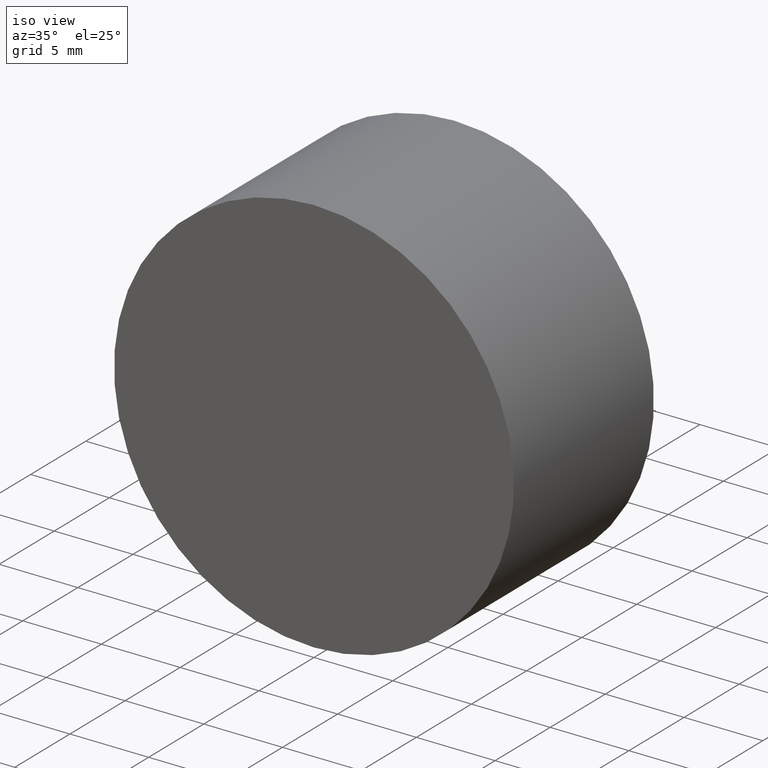
[diagram: clean part render]
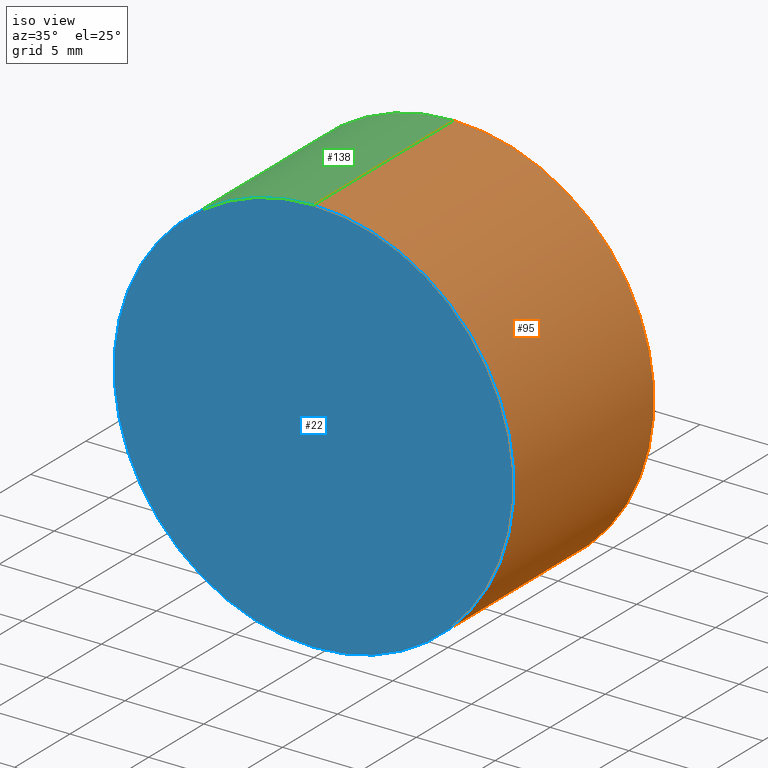
[diagram: same view with three faces highlighted in distinct colors, each labeled with its STEP entity id]
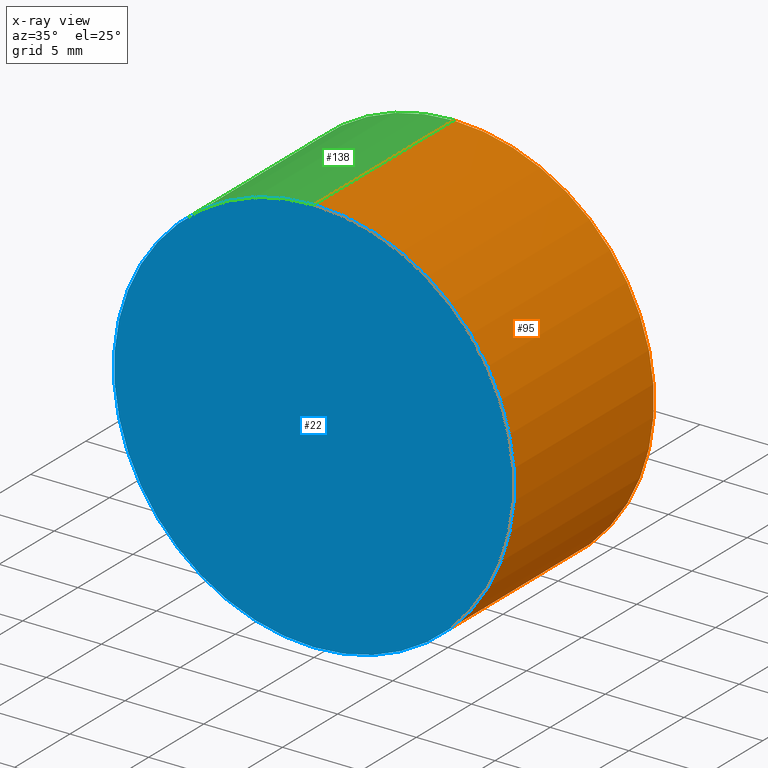
[diagram: x-ray of the same camera — body ghosted, the three highlighted faces saturated]
A machine part, iso view with three faces highlighted in distinct colors.
The next image is the same camera in x-ray (body ghosted, the three faces saturated) — at least one of them is partly hidden behind the body in this view.
Their STEP definitions:

[orange] entity #95 — the highlighted cylindrical surface (partial cylindrical patch) has radius 12.7 mm, axis along (-0, -1, -0).
#4 = EDGE_CURVE ( 'NONE', #96, #85, #9, .T. ) ;
#7 = ORIENTED_EDGE ( 'NONE', *, *, #61, .F. ) ;
#8 = CIRCLE ( 'NONE', #77, 12.69999999999999900 ) ;
#9 = LINE ( 'NONE', #46, #64 ) ;
#11 = CYLINDRICAL_SURFACE ( 'NONE', #65, 12.69999999999999900 ) ;
#12 = CARTESIAN_POINT ( 'NONE',  ( 1.555301434917138400E-015, 0.0000000000000000000, 12.69999999999999900 ) ) ;
#18 = DIRECTION ( 'NONE',  ( 0.0000000000000000000, 0.0000000000000000000, 1.000000000000000000 ) ) ;
#19 = EDGE_LOOP ( 'NONE', ( #7, #93, #99, #50 ) ) ;
#21 = VERTEX_POINT ( 'NONE', #56 ) ;
#24 = CARTESIAN_POINT ( 'NONE',  ( 0.0000000000000000000, 12.69999999999999900, 0.0000000000000000000 ) ) ;
#26 = CARTESIAN_POINT ( 'NONE',  ( 0.0000000000000000000, 0.0000000000000000000, 0.0000000000000000000 ) ) ;
#32 = DIRECTION ( 'NONE',  ( 0.0000000000000000000, 0.0000000000000000000, -1.000000000000000000 ) ) ;
#33 = CARTESIAN_POINT ( 'NONE',  ( 1.555301434917138400E-015, 12.69999999999999900, 12.69999999999999900 ) ) ;
#38 = LINE ( 'NONE', #110, #66 ) ;
#44 = DIRECTION ( 'NONE',  ( 0.0000000000000000000, 0.0000000000000000000, 1.000000000000000000 ) ) ;
#46 = CARTESIAN_POINT ( 'NONE',  ( 1.555301434917138400E-015, 12.69999999999999900, 12.69999999999999900 ) ) ;
#50 = ORIENTED_EDGE ( 'NONE', *, *, #94, .F. ) ;
#53 = CARTESIAN_POINT ( 'NONE',  ( 0.0000000000000000000, 12.69999999999999900, 0.0000000000000000000 ) ) ;
#56 = CARTESIAN_POINT ( 'NONE',  ( 0.0000000000000000000, 0.0000000000000000000, -12.69999999999999900 ) ) ;
#57 = AXIS2_PLACEMENT_3D ( 'NONE', #26, #84, #18 ) ;
#61 = EDGE_CURVE ( 'NONE', #96, #130, #8, .T. ) ;
#64 = VECTOR ( 'NONE', #75, 1000.000000000000000 ) ;
#65 = AXIS2_PLACEMENT_3D ( 'NONE', #24, #67, #32 ) ;
#66 = VECTOR ( 'NONE', #101, 1000.000000000000000 ) ;
#67 = DIRECTION ( 'NONE',  ( -0.0000000000000000000, -1.000000000000000000, -0.0000000000000000000 ) ) ;
#70 = CARTESIAN_POINT ( 'NONE',  ( 0.0000000000000000000, 12.69999999999999900, -12.69999999999999900 ) ) ;
#75 = DIRECTION ( 'NONE',  ( -0.0000000000000000000, -1.000000000000000000, -0.0000000000000000000 ) ) ;
#77 = AXIS2_PLACEMENT_3D ( 'NONE', #53, #117, #44 ) ;
#84 = DIRECTION ( 'NONE',  ( 0.0000000000000000000, 1.000000000000000000, 0.0000000000000000000 ) ) ;
#85 = VERTEX_POINT ( 'NONE', #12 ) ;
#93 = ORIENTED_EDGE ( 'NONE', *, *, #4, .T. ) ;
#94 = EDGE_CURVE ( 'NONE', #130, #21, #38, .T. ) ;
#95 = ADVANCED_FACE ( 'NONE', ( #118 ), #11, .T. ) ;
#96 = VERTEX_POINT ( 'NONE', #33 ) ;
#98 = CIRCLE ( 'NONE', #57, 12.69999999999999900 ) ;
#99 = ORIENTED_EDGE ( 'NONE', *, *, #122, .T. ) ;
#101 = DIRECTION ( 'NONE',  ( -0.0000000000000000000, -1.000000000000000000, -0.0000000000000000000 ) ) ;
#110 = CARTESIAN_POINT ( 'NONE',  ( 0.0000000000000000000, 12.69999999999999900, -12.69999999999999900 ) ) ;
#117 = DIRECTION ( 'NONE',  ( 0.0000000000000000000, 1.000000000000000000, 0.0000000000000000000 ) ) ;
#118 = FACE_OUTER_BOUND ( 'NONE', #19, .T. ) ;
#122 = EDGE_CURVE ( 'NONE', #85, #21, #98, .T. ) ;
#130 = VERTEX_POINT ( 'NONE', #70 ) ;

[blue] entity #22 — the highlighted planar face has unit normal (0, 1, 0).
#2 = DIRECTION ( 'NONE',  ( 0.0000000000000000000, 0.0000000000000000000, 1.000000000000000000 ) ) ;
#6 = CIRCLE ( 'NONE', #43, 12.69999999999999900 ) ;
#10 = AXIS2_PLACEMENT_3D ( 'NONE', #134, #54, #119 ) ;
#12 = CARTESIAN_POINT ( 'NONE',  ( 1.555301434917138400E-015, 0.0000000000000000000, 12.69999999999999900 ) ) ;
#15 = ORIENTED_EDGE ( 'NONE', *, *, #122, .F. ) ;
#18 = DIRECTION ( 'NONE',  ( 0.0000000000000000000, 0.0000000000000000000, 1.000000000000000000 ) ) ;
#21 = VERTEX_POINT ( 'NONE', #56 ) ;
#22 = ADVANCED_FACE ( 'NONE', ( #86 ), #137, .F. ) ;
#26 = CARTESIAN_POINT ( 'NONE',  ( 0.0000000000000000000, 0.0000000000000000000, 0.0000000000000000000 ) ) ;
#34 = ORIENTED_EDGE ( 'NONE', *, *, #63, .F. ) ;
#43 = AXIS2_PLACEMENT_3D ( 'NONE', #100, #112, #2 ) ;
#54 = DIRECTION ( 'NONE',  ( 0.0000000000000000000, 1.000000000000000000, 0.0000000000000000000 ) ) ;
#56 = CARTESIAN_POINT ( 'NONE',  ( 0.0000000000000000000, 0.0000000000000000000, -12.69999999999999900 ) ) ;
#57 = AXIS2_PLACEMENT_3D ( 'NONE', #26, #84, #18 ) ;
#63 = EDGE_CURVE ( 'NONE', #21, #85, #6, .T. ) ;
#71 = EDGE_LOOP ( 'NONE', ( #34, #15 ) ) ;
#84 = DIRECTION ( 'NONE',  ( 0.0000000000000000000, 1.000000000000000000, 0.0000000000000000000 ) ) ;
#85 = VERTEX_POINT ( 'NONE', #12 ) ;
#86 = FACE_OUTER_BOUND ( 'NONE', #71, .T. ) ;
#98 = CIRCLE ( 'NONE', #57, 12.69999999999999900 ) ;
#100 = CARTESIAN_POINT ( 'NONE',  ( 0.0000000000000000000, 0.0000000000000000000, 0.0000000000000000000 ) ) ;
#112 = DIRECTION ( 'NONE',  ( 0.0000000000000000000, 1.000000000000000000, 0.0000000000000000000 ) ) ;
#119 = DIRECTION ( 'NONE',  ( 0.0000000000000000000, -0.0000000000000000000, 1.000000000000000000 ) ) ;
#122 = EDGE_CURVE ( 'NONE', #85, #21, #98, .T. ) ;
#134 = CARTESIAN_POINT ( 'NONE',  ( 0.0000000000000000000, 0.0000000000000000000, 0.0000000000000000000 ) ) ;
#137 = PLANE ( 'NONE',  #10 ) ;

[green] entity #138 — the highlighted cylindrical surface (partial cylindrical patch) has radius 12.7 mm, axis along (-0, -1, -0).
#1 = EDGE_CURVE ( 'NONE', #130, #96, #47, .T. ) ;
#2 = DIRECTION ( 'NONE',  ( 0.0000000000000000000, 0.0000000000000000000, 1.000000000000000000 ) ) ;
#4 = EDGE_CURVE ( 'NONE', #96, #85, #9, .T. ) ;
#6 = CIRCLE ( 'NONE', #43, 12.69999999999999900 ) ;
#9 = LINE ( 'NONE', #46, #64 ) ;
#12 = CARTESIAN_POINT ( 'NONE',  ( 1.555301434917138400E-015, 0.0000000000000000000, 12.69999999999999900 ) ) ;
#14 = CARTESIAN_POINT ( 'NONE',  ( 0.0000000000000000000, 12.69999999999999900, 0.0000000000000000000 ) ) ;
#21 = VERTEX_POINT ( 'NONE', #56 ) ;
#33 = CARTESIAN_POINT ( 'NONE',  ( 1.555301434917138400E-015, 12.69999999999999900, 12.69999999999999900 ) ) ;
#38 = LINE ( 'NONE', #110, #66 ) ;
#42 = ORIENTED_EDGE ( 'NONE', *, *, #1, .F. ) ;
#43 = AXIS2_PLACEMENT_3D ( 'NONE', #100, #112, #2 ) ;
#46 = CARTESIAN_POINT ( 'NONE',  ( 1.555301434917138400E-015, 12.69999999999999900, 12.69999999999999900 ) ) ;
#47 = CIRCLE ( 'NONE', #103, 12.69999999999999900 ) ;
#56 = CARTESIAN_POINT ( 'NONE',  ( 0.0000000000000000000, 0.0000000000000000000, -12.69999999999999900 ) ) ;
#60 = EDGE_LOOP ( 'NONE', ( #126, #42, #62, #106 ) ) ;
#62 = ORIENTED_EDGE ( 'NONE', *, *, #94, .T. ) ;
#63 = EDGE_CURVE ( 'NONE', #21, #85, #6, .T. ) ;
#64 = VECTOR ( 'NONE', #75, 1000.000000000000000 ) ;
#66 = VECTOR ( 'NONE', #101, 1000.000000000000000 ) ;
#70 = CARTESIAN_POINT ( 'NONE',  ( 0.0000000000000000000, 12.69999999999999900, -12.69999999999999900 ) ) ;
#75 = DIRECTION ( 'NONE',  ( -0.0000000000000000000, -1.000000000000000000, -0.0000000000000000000 ) ) ;
#81 = CARTESIAN_POINT ( 'NONE',  ( 0.0000000000000000000, 12.69999999999999900, 0.0000000000000000000 ) ) ;
#82 = AXIS2_PLACEMENT_3D ( 'NONE', #14, #102, #92 ) ;
#85 = VERTEX_POINT ( 'NONE', #12 ) ;
#92 = DIRECTION ( 'NONE',  ( 0.0000000000000000000, 0.0000000000000000000, -1.000000000000000000 ) ) ;
#94 = EDGE_CURVE ( 'NONE', #130, #21, #38, .T. ) ;
#96 = VERTEX_POINT ( 'NONE', #33 ) ;
#100 = CARTESIAN_POINT ( 'NONE',  ( 0.0000000000000000000, 0.0000000000000000000, 0.0000000000000000000 ) ) ;
#101 = DIRECTION ( 'NONE',  ( -0.0000000000000000000, -1.000000000000000000, -0.0000000000000000000 ) ) ;
#102 = DIRECTION ( 'NONE',  ( -0.0000000000000000000, -1.000000000000000000, -0.0000000000000000000 ) ) ;
#103 = AXIS2_PLACEMENT_3D ( 'NONE', #81, #128, #113 ) ;
#106 = ORIENTED_EDGE ( 'NONE', *, *, #63, .T. ) ;
#110 = CARTESIAN_POINT ( 'NONE',  ( 0.0000000000000000000, 12.69999999999999900, -12.69999999999999900 ) ) ;
#112 = DIRECTION ( 'NONE',  ( 0.0000000000000000000, 1.000000000000000000, 0.0000000000000000000 ) ) ;
#113 = DIRECTION ( 'NONE',  ( 0.0000000000000000000, 0.0000000000000000000, 1.000000000000000000 ) ) ;
#124 = FACE_OUTER_BOUND ( 'NONE', #60, .T. ) ;
#126 = ORIENTED_EDGE ( 'NONE', *, *, #4, .F. ) ;
#128 = DIRECTION ( 'NONE',  ( 0.0000000000000000000, 1.000000000000000000, 0.0000000000000000000 ) ) ;
#130 = VERTEX_POINT ( 'NONE', #70 ) ;
#132 = CYLINDRICAL_SURFACE ( 'NONE', #82, 12.69999999999999900 ) ;
#138 = ADVANCED_FACE ( 'NONE', ( #124 ), #132, .T. ) ;